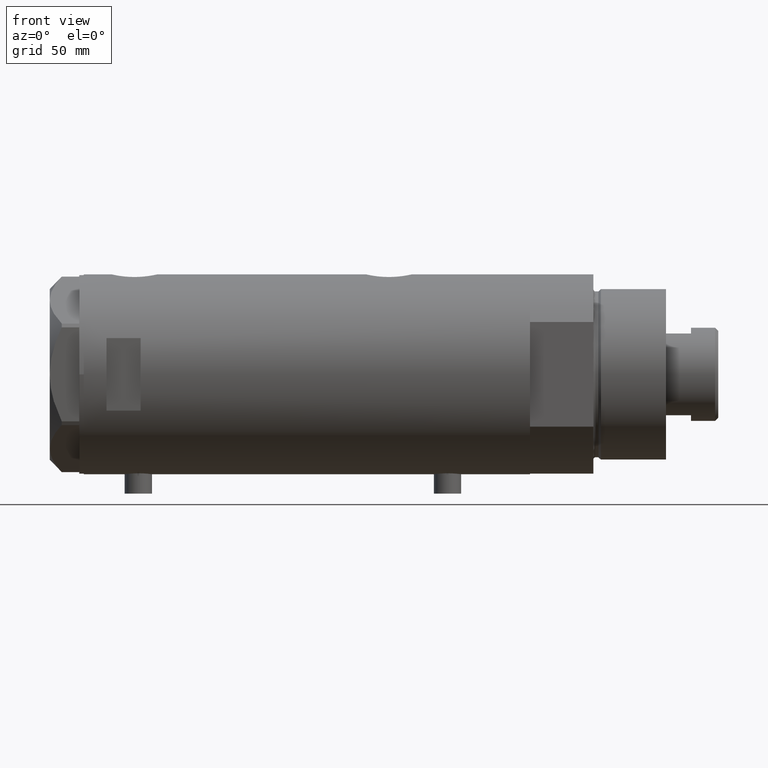
[diagram: clean part render]
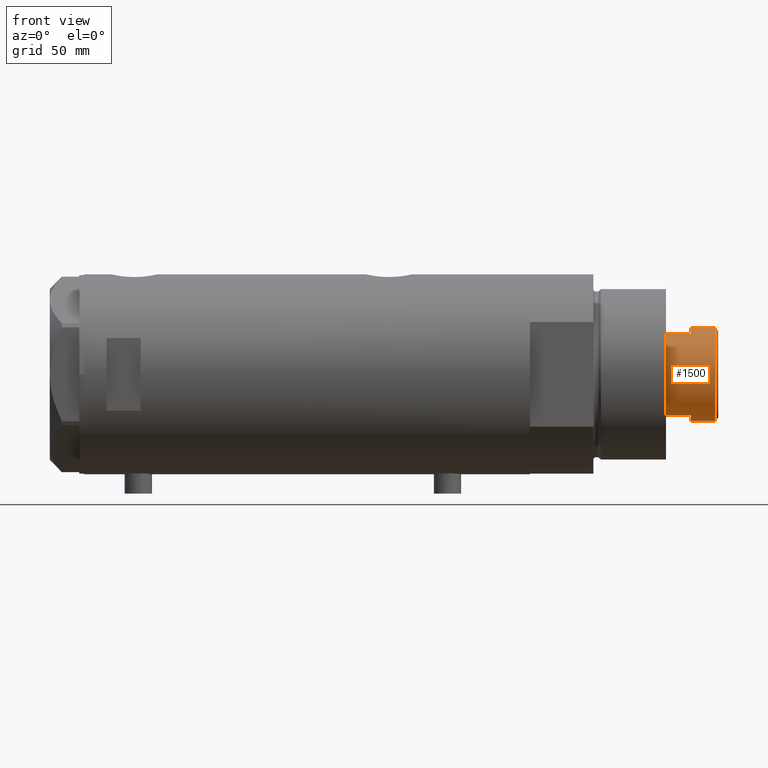
[diagram: same view with one face highlighted and labeled with its STEP entity id]
A machine part, front view. The second image highlights one B-rep face of the part: STEP entity #1500.
In plain terms, the highlighted cylindrical surface (partial cylindrical patch) has radius 20.5 mm, axis along (-1, -0, 0).
Its self-contained STEP definition (entity closure, byte-faithful):
#16 = VERTEX_POINT ( 'NONE', #3375 ) ;
#75 = VECTOR ( 'NONE', #949, 1000.000000000000000 ) ;
#127 = ORIENTED_EDGE ( 'NONE', *, *, #2283, .T. ) ;
#152 = VERTEX_POINT ( 'NONE', #3982 ) ;
#159 = EDGE_CURVE ( 'NONE', #152, #16, #3508, .T. ) ;
#181 = DIRECTION ( 'NONE',  ( 1.000000000000000000, 0.000000000000000000, 0.000000000000000000 ) ) ;
#239 = AXIS2_PLACEMENT_3D ( 'NONE', #3183, #3223, #1110 ) ;
#246 = ORIENTED_EDGE ( 'NONE', *, *, #159, .T. ) ;
#354 = DIRECTION ( 'NONE',  ( -0.000000000000000000, -0.000000000000000000, -1.000000000000000000 ) ) ;
#393 = FACE_OUTER_BOUND ( 'NONE', #2818, .T. ) ;
#445 = EDGE_CURVE ( 'NONE', #16, #4371, #1123, .T. ) ;
#552 = DIRECTION ( 'NONE',  ( 0.000000000000000000, 0.000000000000000000, 1.000000000000000000 ) ) ;
#558 = ORIENTED_EDGE ( 'NONE', *, *, #4180, .T. ) ;
#679 = CIRCLE ( 'NONE', #3469, 20.50000000000000355 ) ;
#736 = CARTESIAN_POINT ( 'NONE',  ( 0.000000000000000000, 0.000000000000000000, 251.9000000000001194 ) ) ;
#949 = DIRECTION ( 'NONE',  ( -0.000000000000000000, -0.000000000000000000, -1.000000000000000000 ) ) ;
#1044 = EDGE_CURVE ( 'NONE', #3462, #1444, #3446, .T. ) ;
#1078 = ORIENTED_EDGE ( 'NONE', *, *, #445, .T. ) ;
#1088 = DIRECTION ( 'NONE',  ( 0.000000000000000000, 0.000000000000000000, 1.000000000000000000 ) ) ;
#1103 = ORIENTED_EDGE ( 'NONE', *, *, #3110, .F. ) ;
#1110 = DIRECTION ( 'NONE',  ( -1.000000000000000000, 0.000000000000000000, 0.000000000000000000 ) ) ;
#1123 = CIRCLE ( 'NONE', #4197, 20.50000000000000000 ) ;
#1265 = CIRCLE ( 'NONE', #4268, 20.50000000000000355 ) ;
#1410 = DIRECTION ( 'NONE',  ( 1.000000000000000000, 0.000000000000000000, 0.000000000000000000 ) ) ;
#1444 = VERTEX_POINT ( 'NONE', #1987 ) ;
#1500 = ADVANCED_FACE ( 'NONE', ( #393 ), #4236, .T. ) ;
#1542 = VERTEX_POINT ( 'NONE', #3827 ) ;
#1634 = CIRCLE ( 'NONE', #4200, 20.50000000000000000 ) ;
#1639 = CARTESIAN_POINT ( 'NONE',  ( -17.97852886083842705, -9.849999999999972999, 230.3000000000000114 ) ) ;
#1697 = CARTESIAN_POINT ( 'NONE',  ( 20.50000000000000355, 2.510525938252074481E-15, 241.3000000000000114 ) ) ;
#1757 = CARTESIAN_POINT ( 'NONE',  ( 17.97852886083843060, -9.849999999999994316, 241.3000000000000114 ) ) ;
#1805 = ORIENTED_EDGE ( 'NONE', *, *, #1044, .F. ) ;
#1815 = DIRECTION ( 'NONE',  ( 1.000000000000000000, 0.000000000000000000, 0.000000000000000000 ) ) ;
#1938 = CARTESIAN_POINT ( 'NONE',  ( 20.50000000000000000, 2.510525938252074481E-15, 241.3000000000000114 ) ) ;
#1987 = CARTESIAN_POINT ( 'NONE',  ( 17.97852886083843060, -9.849999999999960565, 230.3000000000000114 ) ) ;
#2048 = CARTESIAN_POINT ( 'NONE',  ( 0.000000000000000000, 0.000000000000000000, 230.3000000000000114 ) ) ;
#2116 = CARTESIAN_POINT ( 'NONE',  ( 17.97852886083843060, -9.849999999999994316, 241.3000000000000114 ) ) ;
#2173 = CARTESIAN_POINT ( 'NONE',  ( 0.000000000000000000, 0.000000000000000000, 241.3000000000000114 ) ) ;
#2283 = EDGE_CURVE ( 'NONE', #4371, #3128, #3741, .T. ) ;
#2286 = CARTESIAN_POINT ( 'NONE',  ( -17.97852886083842705, -9.849999999999996092, 241.3000000000000114 ) ) ;
#2300 = VECTOR ( 'NONE', #4142, 1000.000000000000000 ) ;
#2372 = DIRECTION ( 'NONE',  ( -0.000000000000000000, -0.000000000000000000, -1.000000000000000000 ) ) ;
#2678 = DIRECTION ( 'NONE',  ( 0.000000000000000000, 0.000000000000000000, 1.000000000000000000 ) ) ;
#2808 = VERTEX_POINT ( 'NONE', #1938 ) ;
#2818 = EDGE_LOOP ( 'NONE', ( #1103, #4249, #246, #1078, #127, #3722, #1805, #558 ) ) ;
#2891 = VECTOR ( 'NONE', #354, 1000.000000000000000 ) ;
#3011 = CARTESIAN_POINT ( 'NONE',  ( -17.97852886083842350, -9.850000000000001421, 241.3000000000000114 ) ) ;
#3017 = LINE ( 'NONE', #1697, #2300 ) ;
#3110 = EDGE_CURVE ( 'NONE', #1542, #2808, #3017, .T. ) ;
#3128 = VERTEX_POINT ( 'NONE', #1639 ) ;
#3178 = DIRECTION ( 'NONE',  ( 0.000000000000000000, 0.000000000000000000, -1.000000000000000000 ) ) ;
#3183 = CARTESIAN_POINT ( 'NONE',  ( 0.000000000000000000, 0.000000000000000000, 241.3000000000000114 ) ) ;
#3223 = DIRECTION ( 'NONE',  ( -0.000000000000000000, -0.000000000000000000, -1.000000000000000000 ) ) ;
#3375 = CARTESIAN_POINT ( 'NONE',  ( -20.50000000000000000, 0.000000000000000000, 241.3000000000000114 ) ) ;
#3392 = EDGE_CURVE ( 'NONE', #3128, #1444, #1265, .T. ) ;
#3446 = LINE ( 'NONE', #2116, #2891 ) ;
#3462 = VERTEX_POINT ( 'NONE', #1757 ) ;
#3469 = AXIS2_PLACEMENT_3D ( 'NONE', #736, #3178, #1410 ) ;
#3508 = LINE ( 'NONE', #4033, #75 ) ;
#3554 = VECTOR ( 'NONE', #2372, 1000.000000000000000 ) ;
#3722 = ORIENTED_EDGE ( 'NONE', *, *, #3392, .T. ) ;
#3741 = LINE ( 'NONE', #3011, #3554 ) ;
#3827 = CARTESIAN_POINT ( 'NONE',  ( 20.50000000000000355, 2.510525938252074481E-15, 251.9000000000001194 ) ) ;
#3982 = CARTESIAN_POINT ( 'NONE',  ( -20.50000000000000355, 0.000000000000000000, 251.9000000000001194 ) ) ;
#4033 = CARTESIAN_POINT ( 'NONE',  ( -20.50000000000000355, 0.000000000000000000, 241.3000000000000114 ) ) ;
#4142 = DIRECTION ( 'NONE',  ( -0.000000000000000000, -0.000000000000000000, -1.000000000000000000 ) ) ;
#4160 = EDGE_CURVE ( 'NONE', #1542, #152, #679, .T. ) ;
#4180 = EDGE_CURVE ( 'NONE', #3462, #2808, #1634, .T. ) ;
#4197 = AXIS2_PLACEMENT_3D ( 'NONE', #4372, #2678, #181 ) ;
#4200 = AXIS2_PLACEMENT_3D ( 'NONE', #2173, #1088, #1815 ) ;
#4236 = CYLINDRICAL_SURFACE ( 'NONE', #239, 20.50000000000000355 ) ;
#4249 = ORIENTED_EDGE ( 'NONE', *, *, #4160, .T. ) ;
#4268 = AXIS2_PLACEMENT_3D ( 'NONE', #2048, #552, #4481 ) ;
#4371 = VERTEX_POINT ( 'NONE', #2286 ) ;
#4372 = CARTESIAN_POINT ( 'NONE',  ( 0.000000000000000000, 0.000000000000000000, 241.3000000000000114 ) ) ;
#4481 = DIRECTION ( 'NONE',  ( 1.000000000000000000, 0.000000000000000000, 0.000000000000000000 ) ) ;